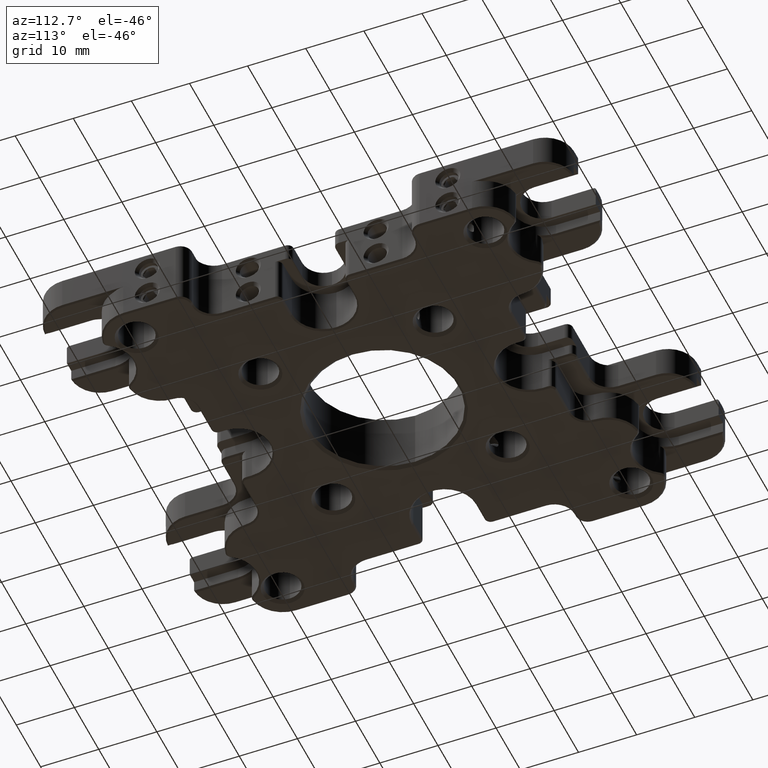
[diagram: clean part render]
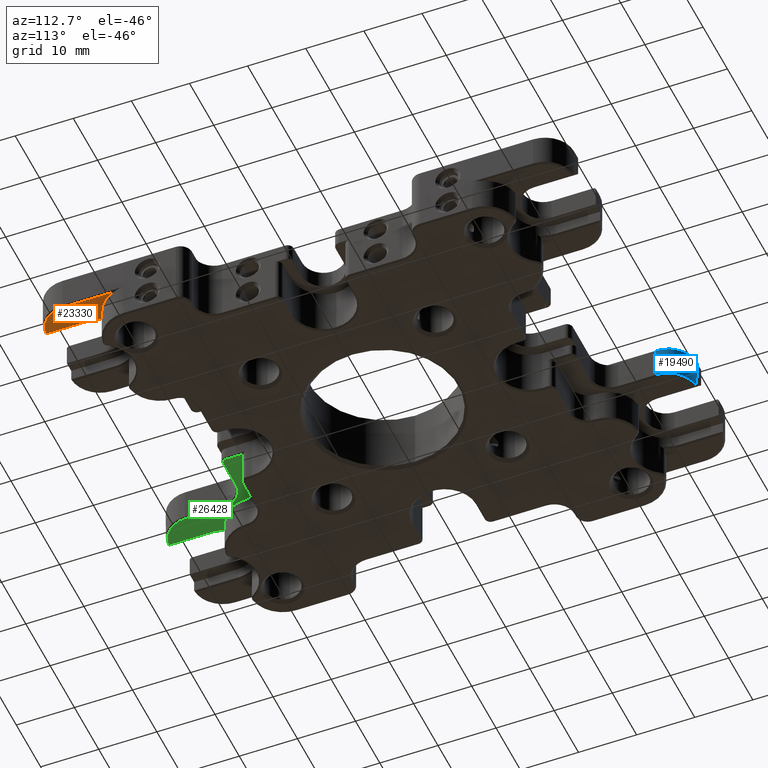
[diagram: same view with three faces highlighted in distinct colors, each labeled with its STEP entity id]
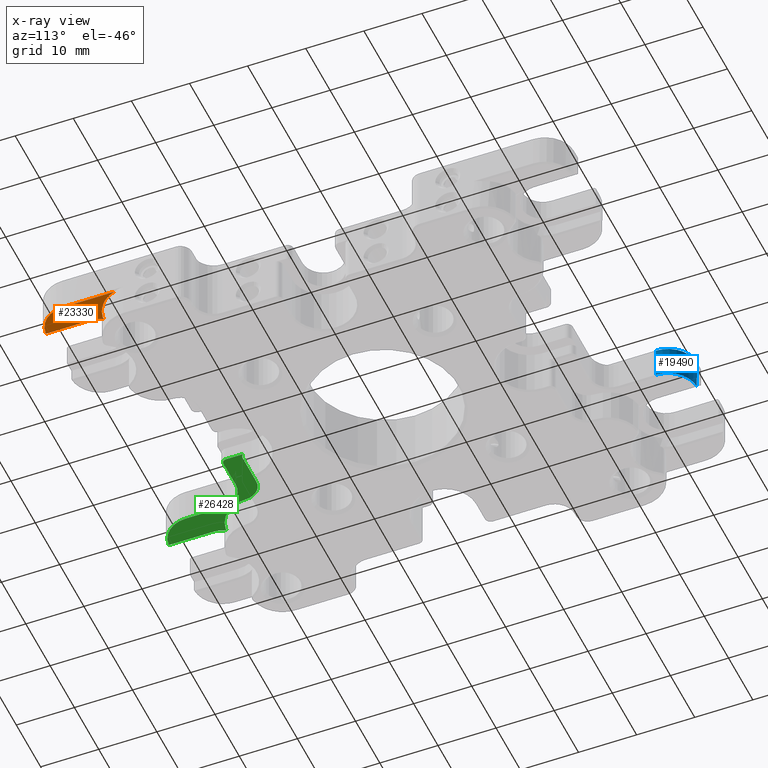
[diagram: x-ray of the same camera — body ghosted, the three highlighted faces saturated]
A machine part, auxiliary view with three faces highlighted in distinct colors.
The next image is the same camera in x-ray (body ghosted, the three faces saturated) — at least one of them is partly hidden behind the body in this view.
Their STEP definitions:

[orange] entity #23330 — the highlighted planar face has unit normal (-0, -0, -1).
#308 = ORIENTED_EDGE ( 'NONE', *, *, #4766, .T. ) ;
#704 = DIRECTION ( 'NONE',  ( -1.000000000000000000, 4.622231866529366732E-33, 5.551115123125782702E-17 ) ) ;
#1956 = DIRECTION ( 'NONE',  ( -1.000000000000000000, 0.000000000000000000, 5.551115123125782702E-17 ) ) ;
#3259 = VECTOR ( 'NONE', #15646, 1000.000000000000000 ) ;
#4547 = CARTESIAN_POINT ( 'NONE',  ( 30.00000000000000711, -30.00000000000000711, 2.008605860504323973E-15 ) ) ;
#4645 = DIRECTION ( 'NONE',  ( 1.000000000000000000, 0.000000000000000000, -5.551115123125782702E-17 ) ) ;
#4661 = CIRCLE ( 'NONE', #18026, 1.000000000000000888 ) ;
#4766 = EDGE_CURVE ( 'NONE', #25672, #19010, #27605, .T. ) ;
#4989 = CIRCLE ( 'NONE', #22850, 5.549999999999998934 ) ;
#5168 = CARTESIAN_POINT ( 'NONE',  ( 2.089531226369186534, 3.576670158103271380, -5.540080499821182582E-16 ) ) ;
#5245 = ORIENTED_EDGE ( 'NONE', *, *, #20108, .T. ) ;
#5263 = DIRECTION ( 'NONE',  ( -5.551115123125782702E-17, -1.224646799147352468E-16, -1.000000000000000000 ) ) ;
#5526 = ORIENTED_EDGE ( 'NONE', *, *, #24930, .T. ) ;
#7925 = ORIENTED_EDGE ( 'NONE', *, *, #21694, .T. ) ;
#8702 = DIRECTION ( 'NONE',  ( -5.551115123125782702E-17, -1.224646799147352468E-16, -1.000000000000000000 ) ) ;
#9245 = CARTESIAN_POINT ( 'NONE',  ( 30.92500000000002203, -45.23517423121890602, 3.823028781286856512E-15 ) ) ;
#10845 = DIRECTION ( 'NONE',  ( -1.000000000000000000, 0.000000000000000000, 5.551115123125782702E-17 ) ) ;
#11232 = CARTESIAN_POINT ( 'NONE',  ( 30.68930778738513965, -34.49748315997405967, 2.521124427282039137E-15 ) ) ;
#11315 = EDGE_CURVE ( 'NONE', #15848, #14628, #4989, .T. ) ;
#11998 = ORIENTED_EDGE ( 'NONE', *, *, #11315, .F. ) ;
#14514 = AXIS2_PLACEMENT_3D ( 'NONE', #5168, #5263, #704 ) ;
#14628 = VERTEX_POINT ( 'NONE', #21950 ) ;
#14652 = VECTOR ( 'NONE', #24693, 1000.000000000000000 ) ;
#14949 = CARTESIAN_POINT ( 'NONE',  ( 35.29999999999996874, -31.64696690920017730, 1.916092034344020317E-15 ) ) ;
#15208 = VERTEX_POINT ( 'NONE', #28068 ) ;
#15436 = DIRECTION ( 'NONE',  ( -1.000000000000000000, 0.000000000000000000, 5.551115123125782702E-17 ) ) ;
#15567 = DIRECTION ( 'NONE',  ( -5.551115123125782702E-17, -1.224646799147352468E-16, -1.000000000000000000 ) ) ;
#15646 = DIRECTION ( 'NONE',  ( -1.785374792092216501E-32, 1.000000000000000000, -1.224646799147352961E-16 ) ) ;
#15848 = VERTEX_POINT ( 'NONE', #14949 ) ;
#15901 = ORIENTED_EDGE ( 'NONE', *, *, #18856, .T. ) ;
#16472 = FACE_OUTER_BOUND ( 'NONE', #18833, .T. ) ;
#17629 = CARTESIAN_POINT ( 'NONE',  ( 30.54999999999999716, -40.49999999999997868, 3.263953866431850987E-15 ) ) ;
#18020 = DIRECTION ( 'NONE',  ( 5.551115123125782702E-17, 1.224646799147352468E-16, 1.000000000000000000 ) ) ;
#18026 = AXIS2_PLACEMENT_3D ( 'NONE', #11232, #18020, #15436 ) ;
#18833 = EDGE_LOOP ( 'NONE', ( #11998, #5245, #308, #5526, #15901, #7925 ) ) ;
#18856 = EDGE_CURVE ( 'NONE', #29017, #15208, #21825, .T. ) ;
#19010 = VERTEX_POINT ( 'NONE', #9245 ) ;
#20108 = EDGE_CURVE ( 'NONE', #15848, #25672, #24805, .T. ) ;
#20163 = LINE ( 'NONE', #24530, #3259 ) ;
#20792 = PLANE ( 'NONE',  #14514 ) ;
#21230 = AXIS2_PLACEMENT_3D ( 'NONE', #26803, #24564, #1956 ) ;
#21653 = CARTESIAN_POINT ( 'NONE',  ( 35.29999999999996874, -40.49999999999997868, 3.000275898083377492E-15 ) ) ;
#21694 = EDGE_CURVE ( 'NONE', #15208, #14628, #4661, .T. ) ;
#21825 = CIRCLE ( 'NONE', #21230, 5.650000000000016342 ) ;
#21950 = CARTESIAN_POINT ( 'NONE',  ( 30.84080400439286151, -35.48594099733099938, 2.633765870529889065E-15 ) ) ;
#22850 = AXIS2_PLACEMENT_3D ( 'NONE', #4547, #15567, #4645 ) ;
#22921 = AXIS2_PLACEMENT_3D ( 'NONE', #17629, #8702, #10845 ) ;
#23330 = ADVANCED_FACE ( 'NONE', ( #16472 ), #20792, .T. ) ;
#23766 = CARTESIAN_POINT ( 'NONE',  ( 30.92500000000002203, -37.91000000000000369, 2.925953663740966041E-15 ) ) ;
#24530 = CARTESIAN_POINT ( 'NONE',  ( 30.92500000000002203, -37.91000000000000369, 2.925953663740966041E-15 ) ) ;
#24564 = DIRECTION ( 'NONE',  ( 5.551115123125782702E-17, 1.224646799147352468E-16, 1.000000000000000000 ) ) ;
#24693 = DIRECTION ( 'NONE',  ( -9.759344449939840507E-17, -1.000000000000000000, 1.224646799147352961E-16 ) ) ;
#24805 = LINE ( 'NONE', #24884, #14652 ) ;
#24884 = CARTESIAN_POINT ( 'NONE',  ( 35.29999999999996874, -40.49999999999997868, 3.000275898083377492E-15 ) ) ;
#24930 = EDGE_CURVE ( 'NONE', #19010, #29017, #20163, .T. ) ;
#25672 = VERTEX_POINT ( 'NONE', #21653 ) ;
#26803 = CARTESIAN_POINT ( 'NONE',  ( 25.27500000000000568, -37.91000000000001080, 3.239591668197574657E-15 ) ) ;
#27605 = CIRCLE ( 'NONE', #22921, 4.749999999999976907 ) ;
#28068 = CARTESIAN_POINT ( 'NONE',  ( 30.35677527342815907, -35.44057495145644054, 2.655079124327720415E-15 ) ) ;
#29017 = VERTEX_POINT ( 'NONE', #23766 ) ;

[blue] entity #19490 — the highlighted cylindrical surface (edge-blend (fillet) strip) has radius 5 mm, axis along (-0, -0, -1).
#669 = DIRECTION ( 'NONE',  ( -1.000000000000000000, 0.000000000000000000, 0.000000000000000000 ) ) ;
#684 = DIRECTION ( 'NONE',  ( -1.000000000000000000, 4.163336342344336395E-14, 8.673617379884034239E-17 ) ) ;
#1527 = AXIS2_PLACEMENT_3D ( 'NONE', #18824, #16670, #684 ) ;
#1996 = VECTOR ( 'NONE', #24917, 1000.000000000000000 ) ;
#2387 = EDGE_CURVE ( 'NONE', #17759, #28875, #5809, .T. ) ;
#2635 = CARTESIAN_POINT ( 'NONE',  ( -20.00000000000000711, 40.49999999999999289, 0.2500000000000033307 ) ) ;
#4116 = VECTOR ( 'NONE', #13964, 1000.000000000000000 ) ;
#4594 = CIRCLE ( 'NONE', #1527, 5.000000000000000888 ) ;
#5041 = DIRECTION ( 'NONE',  ( -5.551115123125782702E-17, -1.224646799147352468E-16, -1.000000000000000000 ) ) ;
#5292 = CARTESIAN_POINT ( 'NONE',  ( -20.00000000000000711, 45.50000000000000000, 28.83210458980949298 ) ) ;
#5809 = LINE ( 'NONE', #13681, #1996 ) ;
#6718 = DIRECTION ( 'NONE',  ( -1.000000000000000000, 0.000000000000000000, 5.421010862427520937E-17 ) ) ;
#7982 = ORIENTED_EDGE ( 'NONE', *, *, #8714, .F. ) ;
#8714 = EDGE_CURVE ( 'NONE', #18781, #24457, #24092, .T. ) ;
#8888 = DIRECTION ( 'NONE',  ( 5.551115123125782702E-17, 1.224646799147352468E-16, 1.000000000000000000 ) ) ;
#8924 = DIRECTION ( 'NONE',  ( -5.551115123125782702E-17, -1.224646799147352468E-16, -1.000000000000000000 ) ) ;
#9370 = AXIS2_PLACEMENT_3D ( 'NONE', #25103, #5041, #669 ) ;
#9516 = LINE ( 'NONE', #22423, #20797 ) ;
#11339 = EDGE_CURVE ( 'NONE', #26242, #17291, #9516, .T. ) ;
#12280 = EDGE_CURVE ( 'NONE', #18781, #28875, #16116, .T. ) ;
#13138 = DIRECTION ( 'NONE',  ( -1.000000000000000000, 0.000000000000000000, 0.000000000000000000 ) ) ;
#13597 = CARTESIAN_POINT ( 'NONE',  ( -19.87500000000000000, 45.49843725578304543, 0.2500000000000027200 ) ) ;
#13681 = CARTESIAN_POINT ( 'NONE',  ( -15.00000000000000533, 40.50000000000000000, 28.83210458980949298 ) ) ;
#13964 = DIRECTION ( 'NONE',  ( -5.551115123125782702E-17, -1.224646799147352468E-16, -1.000000000000000000 ) ) ;
#14748 = AXIS2_PLACEMENT_3D ( 'NONE', #28878, #15416, #13138 ) ;
#15416 = DIRECTION ( 'NONE',  ( -5.551115123125782702E-17, -1.224646799147352468E-16, -1.000000000000000000 ) ) ;
#16116 = CIRCLE ( 'NONE', #14748, 5.000000000000000888 ) ;
#16670 = DIRECTION ( 'NONE',  ( 5.551115123125782702E-17, 1.224646799147352468E-16, 1.000000000000000000 ) ) ;
#17291 = VERTEX_POINT ( 'NONE', #13597 ) ;
#17418 = AXIS2_PLACEMENT_3D ( 'NONE', #2635, #8888, #6718 ) ;
#17759 = VERTEX_POINT ( 'NONE', #24635 ) ;
#17935 = ORIENTED_EDGE ( 'NONE', *, *, #2387, .F. ) ;
#18581 = ORIENTED_EDGE ( 'NONE', *, *, #19101, .T. ) ;
#18781 = VERTEX_POINT ( 'NONE', #26019 ) ;
#18824 = CARTESIAN_POINT ( 'NONE',  ( -20.00000000000000711, 40.49999999999999289, 2.199999999999996625 ) ) ;
#18934 = CARTESIAN_POINT ( 'NONE',  ( -15.00000000000000711, 40.49999999999999289, 5.749999999999993783 ) ) ;
#19101 = EDGE_CURVE ( 'NONE', #26242, #24457, #4594, .T. ) ;
#19490 = ADVANCED_FACE ( 'NONE', ( #27026 ), #26649, .T. ) ;
#20797 = VECTOR ( 'NONE', #8924, 1000.000000000000000 ) ;
#21723 = ORIENTED_EDGE ( 'NONE', *, *, #12280, .T. ) ;
#22298 = CIRCLE ( 'NONE', #17418, 5.000000000000000888 ) ;
#22423 = CARTESIAN_POINT ( 'NONE',  ( -19.87500000000000000, 45.49843725578305254, 28.83210458980949298 ) ) ;
#22721 = CARTESIAN_POINT ( 'NONE',  ( -19.87500000000000000, 45.49843725578304543, 2.199999999999996181 ) ) ;
#23653 = ORIENTED_EDGE ( 'NONE', *, *, #24516, .T. ) ;
#24092 = LINE ( 'NONE', #5292, #4116 ) ;
#24457 = VERTEX_POINT ( 'NONE', #28572 ) ;
#24516 = EDGE_CURVE ( 'NONE', #17759, #17291, #22298, .T. ) ;
#24635 = CARTESIAN_POINT ( 'NONE',  ( -15.00000000000000711, 40.49999999999999289, 0.2500000000000030531 ) ) ;
#24877 = ORIENTED_EDGE ( 'NONE', *, *, #11339, .F. ) ;
#24917 = DIRECTION ( 'NONE',  ( 5.551115123125782702E-17, 1.224646799147352468E-16, 1.000000000000000000 ) ) ;
#25103 = CARTESIAN_POINT ( 'NONE',  ( -20.00000000000000711, 40.50000000000000000, 28.83210458980949298 ) ) ;
#26019 = CARTESIAN_POINT ( 'NONE',  ( -20.00000000000000711, 45.49999999999999289, 5.749999999999993783 ) ) ;
#26242 = VERTEX_POINT ( 'NONE', #22721 ) ;
#26649 = CYLINDRICAL_SURFACE ( 'NONE', #9370, 5.000000000000000888 ) ;
#27026 = FACE_OUTER_BOUND ( 'NONE', #27107, .T. ) ;
#27107 = EDGE_LOOP ( 'NONE', ( #7982, #21723, #17935, #23653, #24877, #18581 ) ) ;
#28572 = CARTESIAN_POINT ( 'NONE',  ( -20.00000000000000711, 45.49999999999999289, 2.199999999999996181 ) ) ;
#28875 = VERTEX_POINT ( 'NONE', #18934 ) ;
#28878 = CARTESIAN_POINT ( 'NONE',  ( -20.00000000000000711, 40.49999999999999289, 5.749999999999994671 ) ) ;

[green] entity #26428 — the highlighted planar face has unit normal (-0, -0, -1).
#310 = CARTESIAN_POINT ( 'NONE',  ( -15.25000000000001776, -34.04999999999999716, 5.016467407373419494E-15 ) ) ;
#959 = CARTESIAN_POINT ( 'NONE',  ( -20.55000000000000071, -30.00000000000000711, 4.814694555244407365E-15 ) ) ;
#1519 = CARTESIAN_POINT ( 'NONE',  ( -19.62499999999997158, -45.23517423121892733, 6.629117476026941877E-15 ) ) ;
#1679 = EDGE_LOOP ( 'NONE', ( #10825, #26663, #10626, #8039, #24159, #7354, #8636, #21811, #8332, #25360, #11532, #9954, #3324 ) ) ;
#1851 = VECTOR ( 'NONE', #19818, 1000.000000000000000 ) ;
#1967 = CARTESIAN_POINT ( 'NONE',  ( -20.00000000000001776, -40.49999999999997868, 6.070042561171934774E-15 ) ) ;
#2104 = DIRECTION ( 'NONE',  ( -1.000000000000000000, 4.622231866529366047E-33, 5.551115123125782702E-17 ) ) ;
#2943 = VERTEX_POINT ( 'NONE', #1519 ) ;
#3324 = ORIENTED_EDGE ( 'NONE', *, *, #11899, .F. ) ;
#3880 = EDGE_CURVE ( 'NONE', #26603, #12715, #6772, .T. ) ;
#3981 = DIRECTION ( 'NONE',  ( 5.551115123125782702E-17, 1.224646799147352468E-16, 1.000000000000000000 ) ) ;
#4021 = DIRECTION ( 'NONE',  ( -1.000000000000000000, 0.000000000000000000, 5.551115123125782702E-17 ) ) ;
#4268 = CARTESIAN_POINT ( 'NONE',  ( -20.19322472657183098, -35.44057495145644765, 5.461167819067803807E-15 ) ) ;
#4473 = DIRECTION ( 'NONE',  ( -1.000000000000000000, 0.000000000000000000, 5.551115123125787632E-17 ) ) ;
#4904 = AXIS2_PLACEMENT_3D ( 'NONE', #25624, #21070, #21172 ) ;
#5187 = VERTEX_POINT ( 'NONE', #17557 ) ;
#5396 = CARTESIAN_POINT ( 'NONE',  ( -12.00000000000000888, -27.00000000000000000, 3.972680172472946869E-15 ) ) ;
#5524 = AXIS2_PLACEMENT_3D ( 'NONE', #18166, #27183, #4473 ) ;
#5605 = DIRECTION ( 'NONE',  ( -1.785374792092216501E-32, 1.000000000000000000, -1.224646799147352961E-16 ) ) ;
#5694 = AXIS2_PLACEMENT_3D ( 'NONE', #17483, #8768, #4021 ) ;
#6772 = CIRCLE ( 'NONE', #5524, 1.000000000000000000 ) ;
#6857 = AXIS2_PLACEMENT_3D ( 'NONE', #9974, #28020, #27829 ) ;
#7354 = ORIENTED_EDGE ( 'NONE', *, *, #21229, .T. ) ;
#7356 = AXIS2_PLACEMENT_3D ( 'NONE', #25220, #23134, #11769 ) ;
#7520 = EDGE_CURVE ( 'NONE', #23629, #20808, #26716, .T. ) ;
#8039 = ORIENTED_EDGE ( 'NONE', *, *, #18730, .T. ) ;
#8332 = ORIENTED_EDGE ( 'NONE', *, *, #23349, .T. ) ;
#8338 = CARTESIAN_POINT ( 'NONE',  ( -11.50000000000001599, -34.04999999999999716, 4.808300590256201854E-15 ) ) ;
#8625 = CARTESIAN_POINT ( 'NONE',  ( -15.25000000000003020, 3.576670158103265607, 4.085292902039814675E-16 ) ) ;
#8636 = ORIENTED_EDGE ( 'NONE', *, *, #20668, .T. ) ;
#8768 = DIRECTION ( 'NONE',  ( 5.551115123125782702E-17, 1.224646799147352468E-16, 1.000000000000000000 ) ) ;
#8840 = DIRECTION ( 'NONE',  ( 3.486881358747353099E-16, -1.000000000000000000, 1.224646799147352714E-16 ) ) ;
#9159 = DIRECTION ( 'NONE',  ( -1.000000000000000000, 0.000000000000000000, 5.551115123125791330E-17 ) ) ;
#9236 = AXIS2_PLACEMENT_3D ( 'NONE', #1967, #19935, #9159 ) ;
#9573 = CARTESIAN_POINT ( 'NONE',  ( -19.70919599560714630, -35.48594099733099938, 5.439854565269972852E-15 ) ) ;
#9954 = ORIENTED_EDGE ( 'NONE', *, *, #17933, .T. ) ;
#9974 = CARTESIAN_POINT ( 'NONE',  ( -12.00000000000000888, -30.00000000000000000, 4.340074212217153102E-15 ) ) ;
#10069 = VECTOR ( 'NONE', #26915, 1000.000000000000000 ) ;
#10468 = CARTESIAN_POINT ( 'NONE',  ( -6.399999999999919531, -27.00000000000000000, 3.661817725577898620E-15 ) ) ;
#10497 = DIRECTION ( 'NONE',  ( -1.000000000000000000, 0.000000000000000000, 5.551115123125785167E-17 ) ) ;
#10626 = ORIENTED_EDGE ( 'NONE', *, *, #10978, .T. ) ;
#10825 = ORIENTED_EDGE ( 'NONE', *, *, #3880, .T. ) ;
#10978 = EDGE_CURVE ( 'NONE', #5187, #21066, #25347, .T. ) ;
#11071 = CARTESIAN_POINT ( 'NONE',  ( -11.50000000000001599, -30.29999999999999716, 4.349058040575944260E-15 ) ) ;
#11532 = ORIENTED_EDGE ( 'NONE', *, *, #23840, .F. ) ;
#11644 = EDGE_CURVE ( 'NONE', #2943, #25379, #21097, .T. ) ;
#11769 = DIRECTION ( 'NONE',  ( -1.000000000000000000, 0.000000000000000000, 5.551115123125782702E-17 ) ) ;
#11899 = EDGE_CURVE ( 'NONE', #26603, #14656, #20378, .T. ) ;
#12448 = DIRECTION ( 'NONE',  ( -5.551115123125782702E-17, -1.224646799147352468E-16, -1.000000000000000000 ) ) ;
#12452 = CIRCLE ( 'NONE', #9236, 4.749999999999997335 ) ;
#12715 = VERTEX_POINT ( 'NONE', #25526 ) ;
#12928 = LINE ( 'NONE', #19837, #10069 ) ;
#13864 = VECTOR ( 'NONE', #8840, 1000.000000000000000 ) ;
#14320 = VERTEX_POINT ( 'NONE', #21255 ) ;
#14404 = VECTOR ( 'NONE', #2104, 1000.000000000000000 ) ;
#14656 = VERTEX_POINT ( 'NONE', #5396 ) ;
#14883 = CARTESIAN_POINT ( 'NONE',  ( -11.50000000000001599, -30.30000000000000071, 4.349058040575945049E-15 ) ) ;
#15549 = CARTESIAN_POINT ( 'NONE',  ( 15.00000000000000888, -27.00000000000000000, 2.473879089228985145E-15 ) ) ;
#16723 = CIRCLE ( 'NONE', #16813, 5.549999999999998046 ) ;
#16813 = AXIS2_PLACEMENT_3D ( 'NONE', #959, #16850, #25687 ) ;
#16850 = DIRECTION ( 'NONE',  ( -5.551115123125782702E-17, -1.224646799147352468E-16, -1.000000000000000000 ) ) ;
#17483 = CARTESIAN_POINT ( 'NONE',  ( -19.86069221261486817, -34.49748315997405967, 5.327213122022122924E-15 ) ) ;
#17557 = CARTESIAN_POINT ( 'NONE',  ( -5.649999999999900879, -29.54999999999999361, 3.932469295937028615E-15 ) ) ;
#17614 = VERTEX_POINT ( 'NONE', #4268 ) ;
#17933 = EDGE_CURVE ( 'NONE', #18585, #14656, #22714, .T. ) ;
#18166 = CARTESIAN_POINT ( 'NONE',  ( -6.399999999999919531, -26.00000000000000000, 3.539353045663163077E-15 ) ) ;
#18382 = CARTESIAN_POINT ( 'NONE',  ( -19.62499999999997158, -37.91000000000000369, 5.732042358481049434E-15 ) ) ;
#18585 = VERTEX_POINT ( 'NONE', #21471 ) ;
#18730 = EDGE_CURVE ( 'NONE', #21066, #23629, #18732, .T. ) ;
#18732 = LINE ( 'NONE', #14883, #1851 ) ;
#19081 = CARTESIAN_POINT ( 'NONE',  ( 2.089531226369186534, 3.576670158103271380, -5.540080499821182582E-16 ) ) ;
#19130 = LINE ( 'NONE', #8625, #13864 ) ;
#19691 = CARTESIAN_POINT ( 'NONE',  ( -6.399999999999904432, -30.30000000000000071, 4.065951169296524135E-15 ) ) ;
#19818 = DIRECTION ( 'NONE',  ( -1.000000000000000000, 4.622231866529366047E-33, 5.551115123125782702E-17 ) ) ;
#19837 = CARTESIAN_POINT ( 'NONE',  ( -5.649999999999902656, -29.54999999999999361, 3.932469295937028615E-15 ) ) ;
#19935 = DIRECTION ( 'NONE',  ( -5.551115123125782702E-17, -1.224646799147352468E-16, -1.000000000000000000 ) ) ;
#20378 = LINE ( 'NONE', #15549, #14404 ) ;
#20586 = EDGE_CURVE ( 'NONE', #17614, #21990, #23720, .T. ) ;
#20668 = EDGE_CURVE ( 'NONE', #14320, #2943, #12452, .T. ) ;
#20808 = VERTEX_POINT ( 'NONE', #310 ) ;
#21066 = VERTEX_POINT ( 'NONE', #19691 ) ;
#21070 = DIRECTION ( 'NONE',  ( 5.551115123125782702E-17, 1.224646799147352468E-16, 1.000000000000000000 ) ) ;
#21097 = LINE ( 'NONE', #23477, #28391 ) ;
#21172 = DIRECTION ( 'NONE',  ( -1.000000000000000000, 0.000000000000000000, 5.551115123125782702E-17 ) ) ;
#21229 = EDGE_CURVE ( 'NONE', #20808, #14320, #19130, .T. ) ;
#21255 = CARTESIAN_POINT ( 'NONE',  ( -15.25000000000002132, -40.49999999999997868, 5.806364592823460095E-15 ) ) ;
#21410 = DIRECTION ( 'NONE',  ( -1.000000000000000000, 4.622231866529366732E-33, 5.551115123125782702E-17 ) ) ;
#21471 = CARTESIAN_POINT ( 'NONE',  ( -15.00000000000000711, -30.00000000000000711, 4.506607665910927372E-15 ) ) ;
#21508 = PLANE ( 'NONE',  #26856 ) ;
#21811 = ORIENTED_EDGE ( 'NONE', *, *, #11644, .T. ) ;
#21990 = VERTEX_POINT ( 'NONE', #9573 ) ;
#22714 = CIRCLE ( 'NONE', #6857, 3.000000000000000888 ) ;
#23105 = EDGE_CURVE ( 'NONE', #12715, #5187, #12928, .T. ) ;
#23134 = DIRECTION ( 'NONE',  ( -5.551115123125782702E-17, -1.224646799147352468E-16, -1.000000000000000000 ) ) ;
#23349 = EDGE_CURVE ( 'NONE', #25379, #17614, #25840, .T. ) ;
#23477 = CARTESIAN_POINT ( 'NONE',  ( -19.62499999999997158, -37.91000000000000369, 5.732042358481049434E-15 ) ) ;
#23514 = AXIS2_PLACEMENT_3D ( 'NONE', #8338, #3981, #10497 ) ;
#23629 = VERTEX_POINT ( 'NONE', #11071 ) ;
#23720 = CIRCLE ( 'NONE', #5694, 1.000000000000000888 ) ;
#23840 = EDGE_CURVE ( 'NONE', #18585, #21990, #16723, .T. ) ;
#24159 = ORIENTED_EDGE ( 'NONE', *, *, #7520, .T. ) ;
#25220 = CARTESIAN_POINT ( 'NONE',  ( -6.399999999999902656, -29.54999999999999716, 3.974102659360471985E-15 ) ) ;
#25347 = CIRCLE ( 'NONE', #7356, 0.7500000000000006661 ) ;
#25360 = ORIENTED_EDGE ( 'NONE', *, *, #20586, .T. ) ;
#25379 = VERTEX_POINT ( 'NONE', #18382 ) ;
#25526 = CARTESIAN_POINT ( 'NONE',  ( -5.649999999999914202, -26.66143782776613946, 3.578722454100597843E-15 ) ) ;
#25624 = CARTESIAN_POINT ( 'NONE',  ( -25.27500000000000568, -37.91000000000001080, 6.045680362937658050E-15 ) ) ;
#25687 = DIRECTION ( 'NONE',  ( 1.000000000000000000, 0.000000000000000000, -5.551115123125783935E-17 ) ) ;
#25840 = CIRCLE ( 'NONE', #4904, 5.650000000000029665 ) ;
#26200 = FACE_OUTER_BOUND ( 'NONE', #1679, .T. ) ;
#26428 = ADVANCED_FACE ( 'NONE', ( #26200 ), #21508, .T. ) ;
#26603 = VERTEX_POINT ( 'NONE', #10468 ) ;
#26663 = ORIENTED_EDGE ( 'NONE', *, *, #23105, .T. ) ;
#26716 = CIRCLE ( 'NONE', #23514, 3.750000000000001776 ) ;
#26856 = AXIS2_PLACEMENT_3D ( 'NONE', #19081, #12448, #21410 ) ;
#26915 = DIRECTION ( 'NONE',  ( 4.149196400824861668E-15, -1.000000000000000000, 1.224646799147350742E-16 ) ) ;
#27183 = DIRECTION ( 'NONE',  ( 5.551115123125782702E-17, 1.224646799147352468E-16, 1.000000000000000000 ) ) ;
#27829 = DIRECTION ( 'NONE',  ( -1.000000000000000000, 0.000000000000000000, 5.551115123125786400E-17 ) ) ;
#28020 = DIRECTION ( 'NONE',  ( -5.551115123125782702E-17, -1.224646799147352468E-16, -1.000000000000000000 ) ) ;
#28391 = VECTOR ( 'NONE', #5605, 1000.000000000000000 ) ;